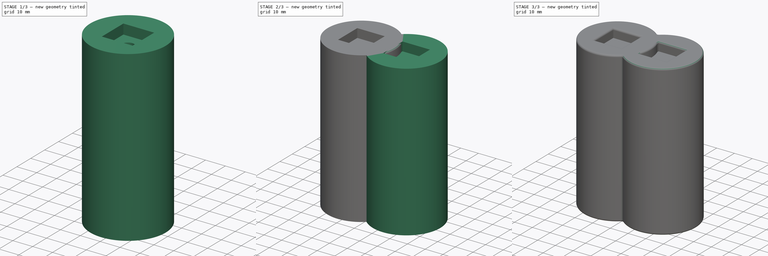
[diagram: build sequence overview — one tinted view per stage of 3, left to right]
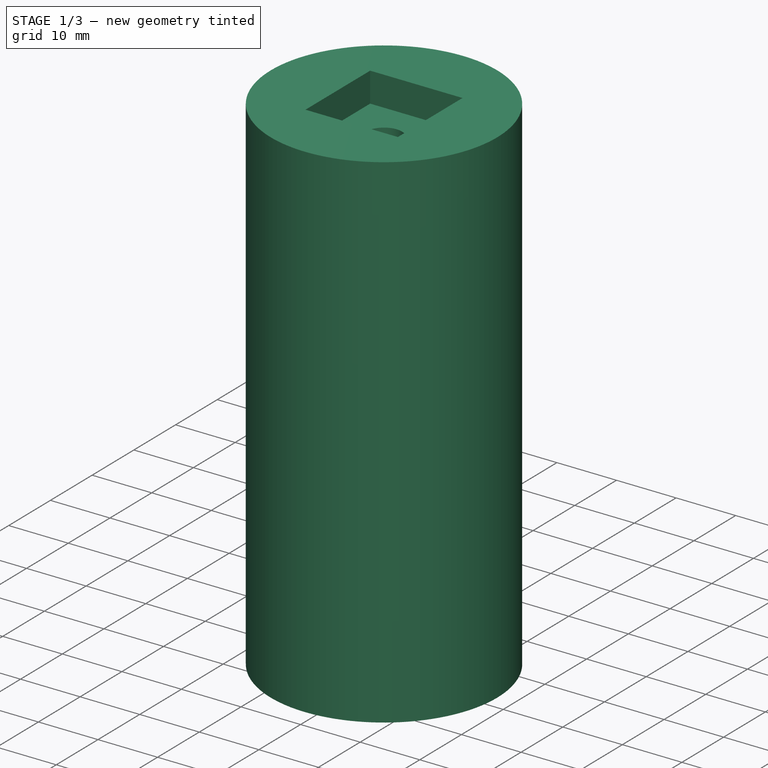
[diagram: stage 1 of 3 — iso view after this stage's code; geometry added in this stage tinted green]
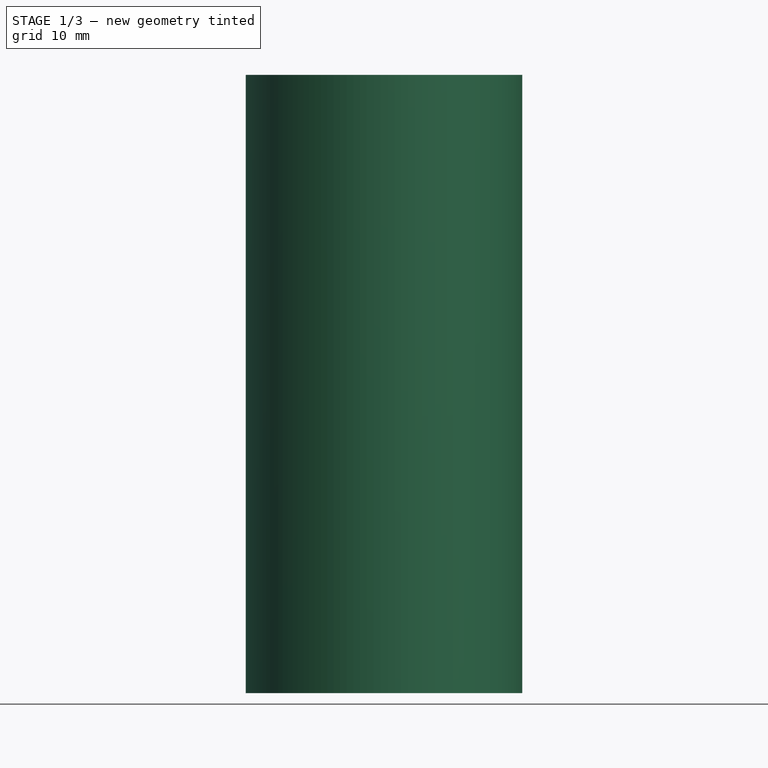
[diagram: stage 1 of 3 — front view after this stage's code; geometry added in this stage tinted green]
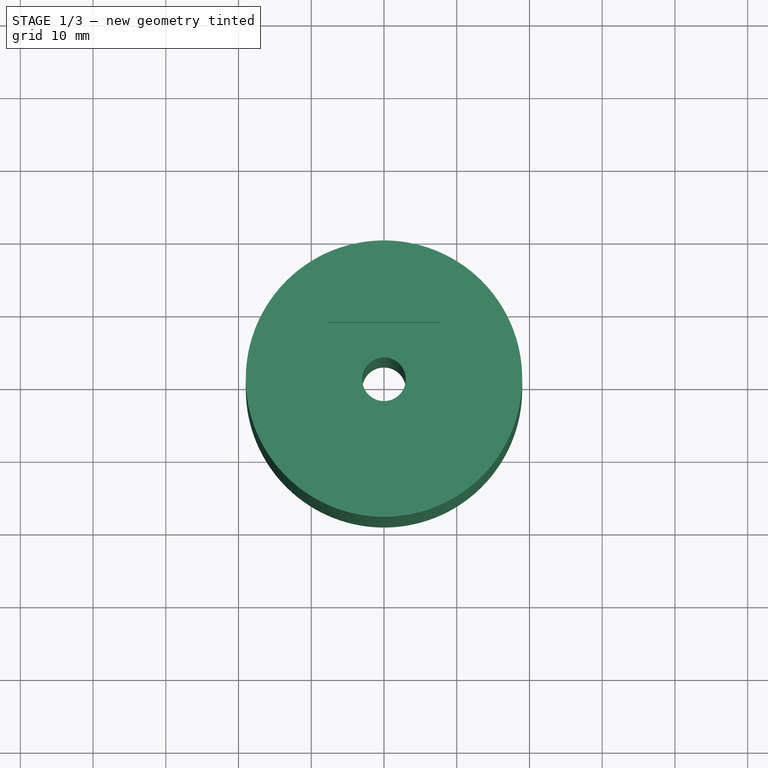
[diagram: stage 1 of 3 — top view after this stage's code; geometry added in this stage tinted green]
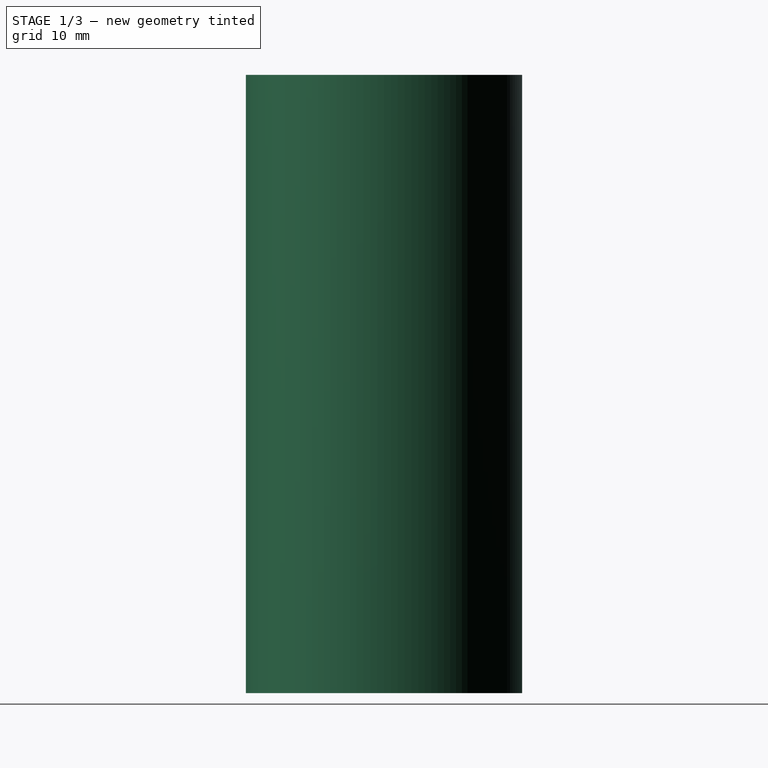
[diagram: stage 1 of 3 — right view after this stage's code; geometry added in this stage tinted green]
FCSTD DOCUMENT  (FreeCAD 0.20R29177 +426 (Git))
Label: bedRoomClothDrawStandLift
License: All rights reserved
LicenseURL: http://en.wikipedia.org/wiki/All_rights_reserved
objects: Sketcher::SketchObject×5, PartDesign::Pocket×3, PartDesign::Pad×2, PartDesign::Fillet×2, PartDesign::Body×2, Spreadsheet::Sheet×1
note: 21 computed .brp shape members not serialized (recipe doc carries the construction recipe); baked Part::Feature solids carry a one-line shape summary decoded from their .brp

FEATURE [Sketcher::SketchObject] Sketch003  label="Sketch003singleBase"
  FullyConstrained = true
  MapMode = 5
  Support = -> [XY_Plane001]
  expr: Constraints[1] = Spreadsheet.totalBaseR
  expr: Constraints[3] = Spreadsheet.originalBaseSupportScrewR
  sketch-geometry (2):
    g0: Circle CenterX=0 CenterY=0 CenterZ=0 NormalX=0 NormalY=0 NormalZ=1 AngleXU=0 Radius=19
    g1: Circle CenterX=0 CenterY=0 CenterZ=0 NormalX=0 NormalY=0 NormalZ=1 AngleXU=0 Radius=3
  constraints (4):
    c: Coincident(g0,g-1)
    c: Radius(g0) = 19
    c: Coincident(g1,g0)
    c: Radius(g1) = 3
FEATURE [PartDesign::Pad] Pad001
  Direction = (0,0,1)
  Length = 85
  Length2 = 10
  Profile = -> Sketch003
  ReferenceAxis = -> Sketch003 [N_Axis]
  Type = 0
  expr: Length = Spreadsheet.testLegHeight
FEATURE [Sketcher::SketchObject] Sketch004  label="Sketch004TopHolder"
  AttachmentOffset = pos=(0,0,85) rot=(0,0,1;0rad)
  FullyConstrained = true
  MapMode = 5
  Placement = pos=(0,0,85) rot=(0,0,1;0rad)
  Support = -> [XY_Plane001]
  expr: .AttachmentOffset.Base.z = Spreadsheet.testLegHeight
  expr: Constraints[10] = Spreadsheet.squreLegWidth / 2
  expr: Constraints[11] = Spreadsheet.squreLegWidth / 2
  expr: Constraints[8] = Spreadsheet.squreLegWidth
  expr: Constraints[9] = Spreadsheet.squreLegWidth
  sketch-geometry (4):
    g0: LineSegment StartX=-7.75 StartY=7.75 StartZ=0 EndX=7.75 EndY=7.75 EndZ=0
    g1: LineSegment StartX=7.75 StartY=7.75 StartZ=0 EndX=7.75 EndY=-7.75 EndZ=0
    g2: LineSegment StartX=7.75 StartY=-7.75 StartZ=0 EndX=-7.75 EndY=-7.75 EndZ=0
    g3: LineSegment StartX=-7.75 StartY=-7.75 StartZ=0 EndX=-7.75 EndY=7.75 EndZ=0
  constraints (12):
    c: Coincident(g0,g1)
    c: Coincident(g1,g2)
    c: Coincident(g2,g3)
    c: Coincident(g3,g0)
    c: Horizontal(g0)
    c: Horizontal(g2)
    c: Vertical(g1)
    c: Vertical(g3)
    c: DistanceX(g0,g0) = 15.5
    c: DistanceY(g1,g1) = 15.5
    c: DistanceY(g-1,g0) = 7.75
    c: DistanceX(g-1,g0) = 7.75
FEATURE [PartDesign::Pocket] Pocket002
  BaseFeature = -> Pad001
  Direction = (0,0,-1)
  Length = 5
  Length2 = 5
  Profile = -> Sketch004
  ReferenceAxis = -> Sketch004 [N_Axis]
  Type = 0
  expr: Length = Spreadsheet.legGuardHeight
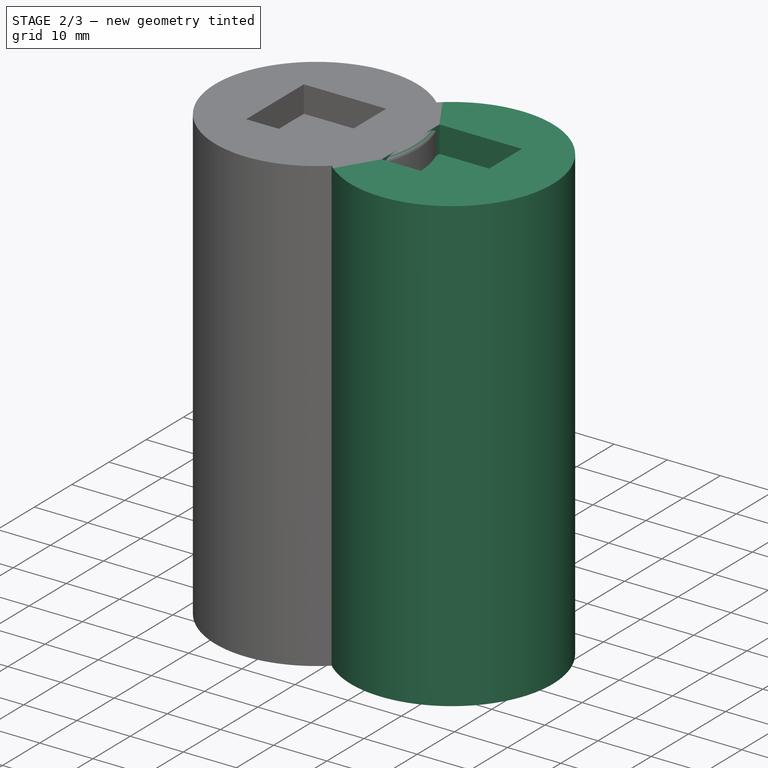
[diagram: stage 2 of 3 — iso view after this stage's code; geometry added in this stage tinted green]
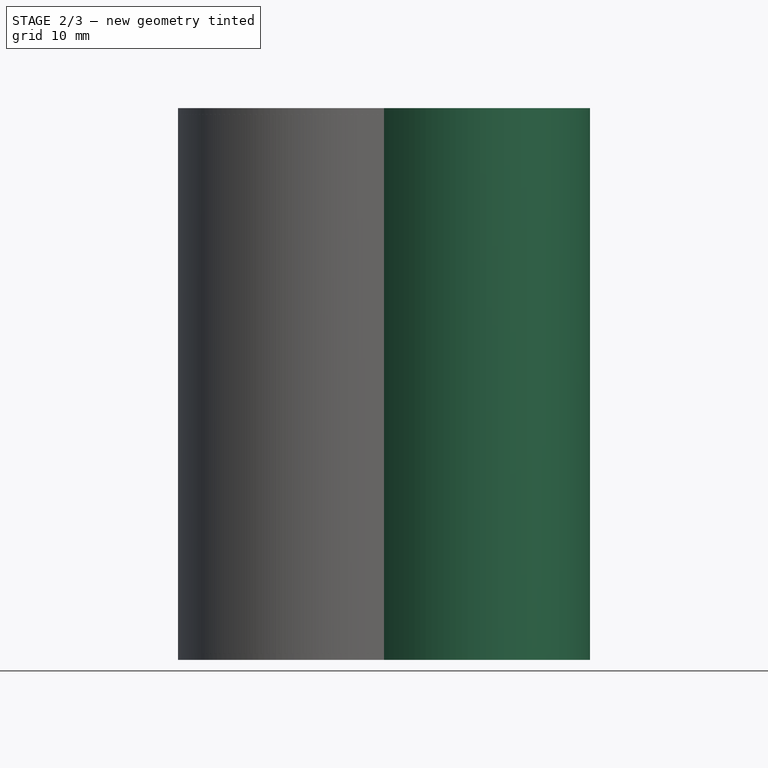
[diagram: stage 2 of 3 — front view after this stage's code; geometry added in this stage tinted green]
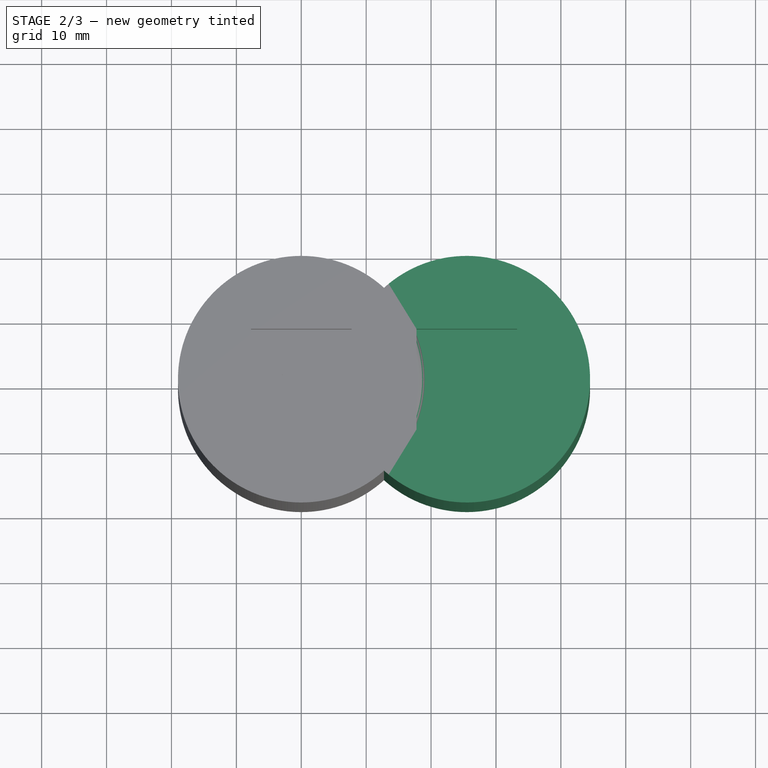
[diagram: stage 2 of 3 — top view after this stage's code; geometry added in this stage tinted green]
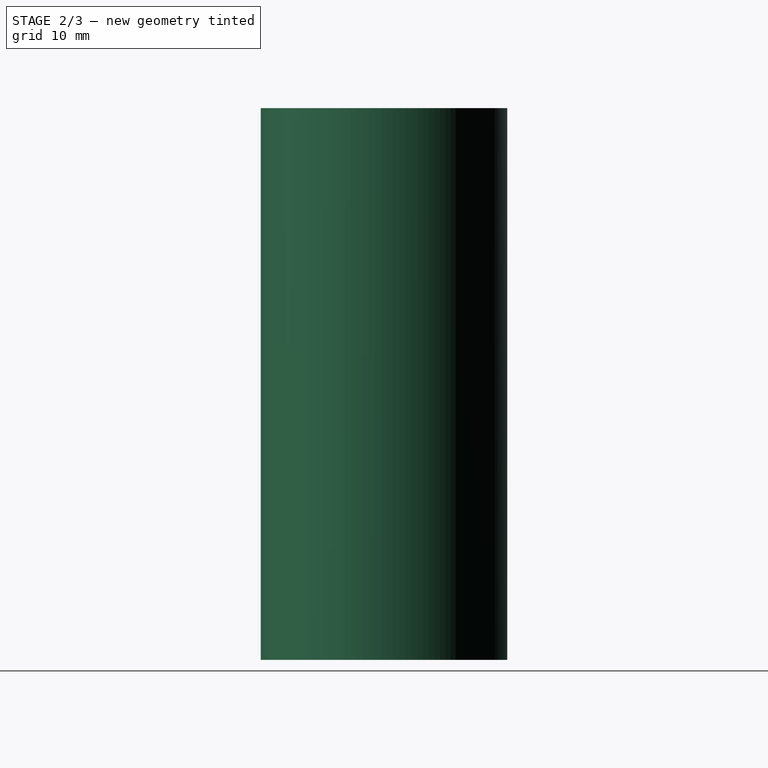
[diagram: stage 2 of 3 — right view after this stage's code; geometry added in this stage tinted green]
FEATURE [Spreadsheet::Sheet] Spreadsheet
  cells = A2=baseStandInnerR; B2(baseStandInnerR)==28 / 2; A3=between2LegsDist; B3(between2LegsDist)=10; A4=legThickness; B4(legThickness)=5; A5=legHeight; B5(legHeight)==128 - 48; A6=totalLegHeight; B6(totalLegHeight)==B5 + B7; A7=legGuardHeight; B7(legGuardHeight)=5; A8=totalBaseR; B8(totalBaseR)==B2 + B4; A10=squreLegWidth; B10(squreLegWidth)=15.5; A12=originalBaseSupportR; B12(originalBaseSupportR)=14; A13=originalBaseSupportScrewR; B13(originalBaseSupportScrewR)=3; A14=originalBaseSupportScrewLen; B14(originalBaseSupportScrewLen)=15; A15=testLegHeight; B15(testLegHeight)==B6; C15=change it to totalLegHeight for realprint
FEATURE [Sketcher::SketchObject] Sketch  label="SketchBase"
  FullyConstrained = true
  MapMode = 5
  Support = -> [XY_Plane]
  expr: Constraints[2] = Spreadsheet.totalBaseR
  expr: Constraints[3] = Spreadsheet.totalBaseR
  expr: Constraints[4] = Spreadsheet.between2LegsDist + Spreadsheet.squreLegWidth
  sketch-geometry (2):
    g0: ArcOfCircle CenterX=0 CenterY=0 CenterZ=0 NormalX=0 NormalY=0 NormalZ=1 AngleXU=0 Radius=19 StartAngle=0.835169 EndAngle=5.44802
    g1: ArcOfCircle CenterX=25.5 CenterY=0 CenterZ=0 NormalX=0 NormalY=0 NormalZ=1 AngleXU=0 Radius=19 StartAngle=3.97676 EndAngle=8.58961
  constraints (7):
    c: Coincident(g0,g-1)
    c: PointOnObject(g1,g-1)
    c: Radius(g0) = 19
    c: Radius(g1) = 19
    c: DistanceX(g0,g1) = 25.5
    c: Coincident(g0,g1)
    c: Coincident(g0,g1)
FEATURE [PartDesign::Pad] Pad
  Direction = (0,0,1)
  Length = 85
  Length2 = 10
  Profile = -> Sketch
  ReferenceAxis = -> Sketch [N_Axis]
  Type = 0
  expr: Length = Spreadsheet.testLegHeight
FEATURE [Sketcher::SketchObject] Sketch001  label="Sketch001TopPocket"
  AttachmentOffset = pos=(0,0,85) rot=(0,0,1;0rad)
  FullyConstrained = true
  MapMode = 5
  Placement = pos=(0,0,85) rot=(0,0,1;0rad)
  Support = -> [XY_Plane]
  expr: .AttachmentOffset.Base.z = Spreadsheet.testLegHeight
  expr: Constraints[19] = Spreadsheet.between2LegsDist
  expr: Constraints[20] = Spreadsheet.squreLegWidth
  sketch-geometry (8):
    g0: LineSegment StartX=-7.75 StartY=7.75 StartZ=0 EndX=7.75 EndY=7.75 EndZ=0
    g1: LineSegment StartX=7.75 StartY=7.75 StartZ=0 EndX=7.75 EndY=-7.75 EndZ=0
    g2: LineSegment StartX=7.75 StartY=-7.75 StartZ=0 EndX=-7.75 EndY=-7.75 EndZ=0
    g3: LineSegment StartX=-7.75 StartY=-7.75 StartZ=0 EndX=-7.75 EndY=7.75 EndZ=0
    g4: LineSegment StartX=17.75 StartY=7.75 StartZ=0 EndX=33.25 EndY=7.75 EndZ=0
    g5: LineSegment StartX=33.25 StartY=7.75 StartZ=0 EndX=33.25 EndY=-7.75 EndZ=0
    g6: LineSegment StartX=33.25 StartY=-7.75 StartZ=0 EndX=17.75 EndY=-7.75 EndZ=0
    g7: LineSegment StartX=17.75 StartY=-7.75 StartZ=0 EndX=17.75 EndY=7.75 EndZ=0
  constraints (21):
    c: Coincident(g0,g1)
    c: Coincident(g1,g2)
    c: Coincident(g2,g3)
    c: Coincident(g3,g0)
    c: Horizontal(g2)
    c: Vertical(g3)
    c: Coincident(g4,g5)
    c: Coincident(g5,g6)
    c: Coincident(g6,g7)
    c: Coincident(g7,g4)
    c: Horizontal(g4)
    c: Horizontal(g6)
    c: Vertical(g7)
    c: Equal(g0,g1)
    c: Equal(g4,g5)
    c: Equal(g4,g0)
    c: Symmetric(g0,g0,g-2)
    c: Symmetric(g0,g1,g-1)
    c: Symmetric(g4,g5,g-1)
    c: DistanceX(g0,g4) = 10
    c: DistanceX(g0,g0) = 15.5
FEATURE [PartDesign::Pocket] Pocket
  BaseFeature = -> Pad
  Direction = (0,0,-1)
  Length = 5
  Length2 = 5
  Profile = -> Sketch001
  ReferenceAxis = -> Sketch001 [N_Axis]
  Type = 0
  expr: Length = Spreadsheet.legGuardHeight
FEATURE [PartDesign::Body] Body
  Group = -> [Sketch,Pad,Sketch001,Pocket,Sketch002,Pocket001,Fillet]
  Origin = -> Origin
  Tip = -> Fillet
FEATURE [PartDesign::Fillet] Fillet001
  Base = -> Pocket002 [Face3,Face2]
  BaseFeature = -> Pocket002
  Radius = 1
  SupportTransform = false
  UseAllEdges = false
FEATURE [PartDesign::Body] Body001  label="Body001Single"
  Group = -> [Sketch003,Pad001,Sketch004,Pocket002,Fillet001]
  Origin = -> Origin001
  Tip = -> Fillet001
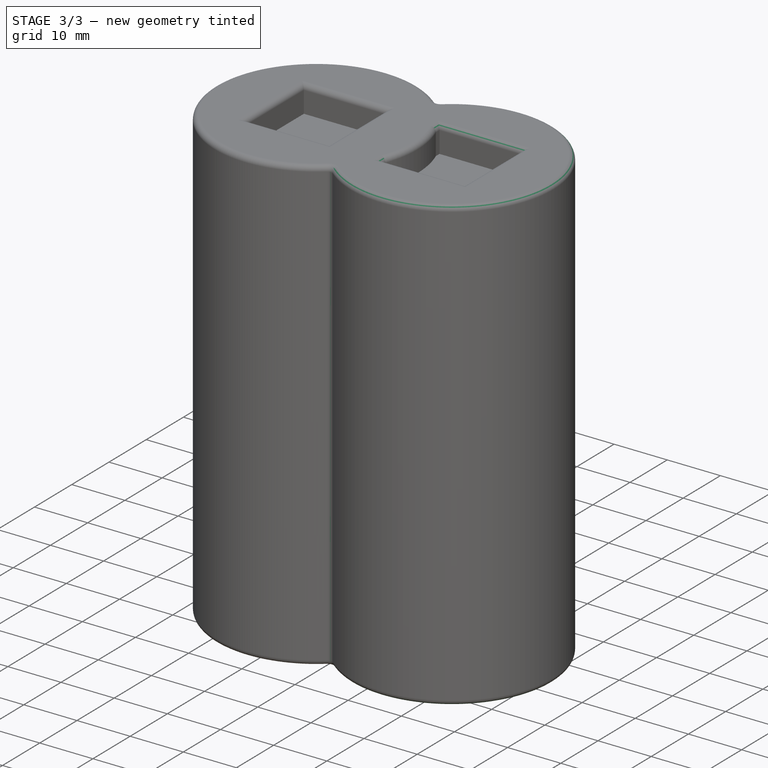
[diagram: stage 3 of 3 — iso view after this stage's code; geometry added in this stage tinted green]
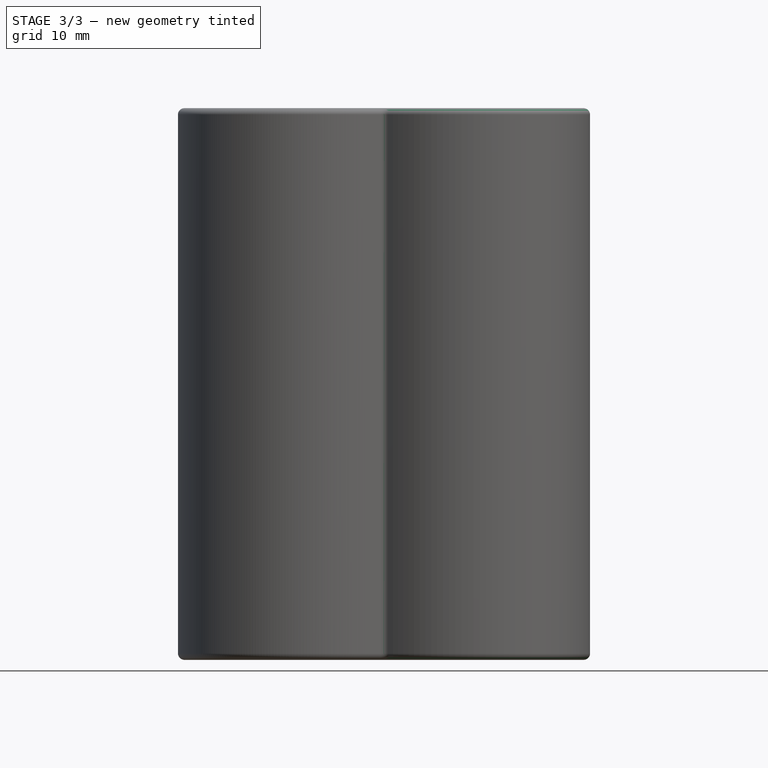
[diagram: stage 3 of 3 — front view after this stage's code; geometry added in this stage tinted green]
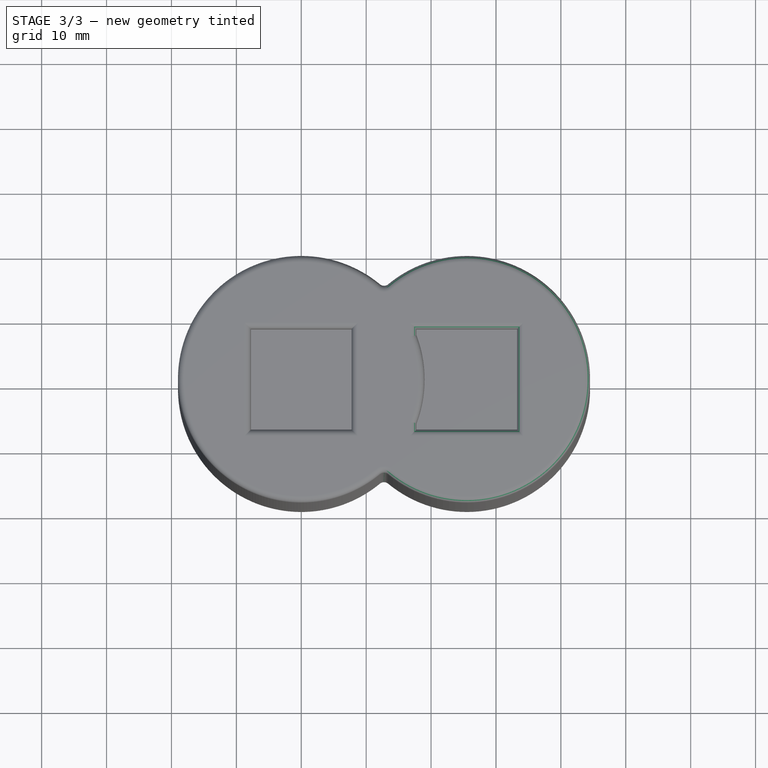
[diagram: stage 3 of 3 — top view after this stage's code; geometry added in this stage tinted green]
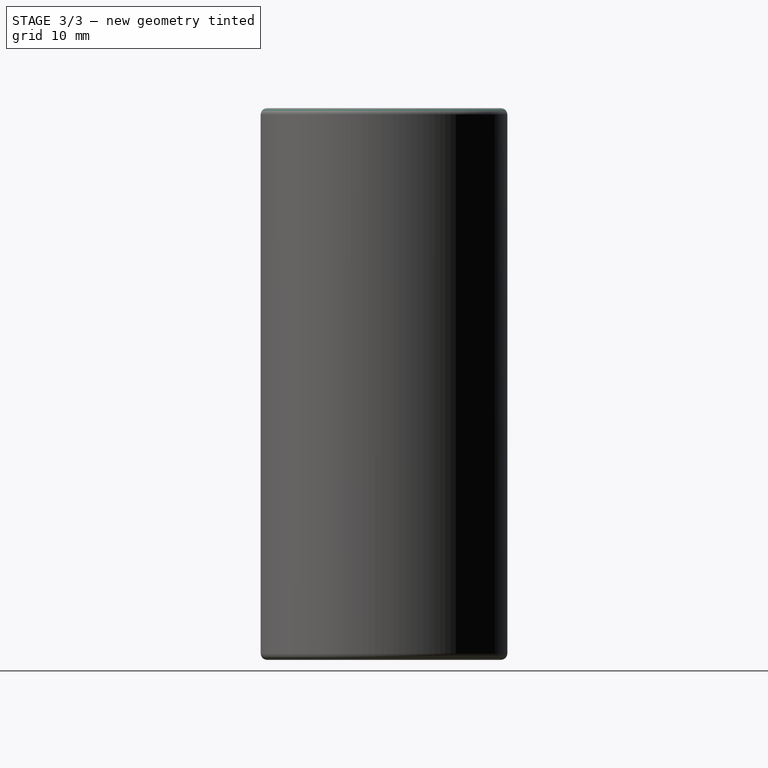
[diagram: stage 3 of 3 — right view after this stage's code; geometry added in this stage tinted green]
FEATURE [Sketcher::SketchObject] Sketch002
  FullyConstrained = true
  MapMode = 5
  Support = -> [XY_Plane]
  expr: Constraints[2] = Spreadsheet.originalBaseSupportR
  expr: Constraints[3] = Spreadsheet.originalBaseSupportR
  expr: Constraints[4] = Spreadsheet.originalBaseSupportR * 2
  expr: Constraints[5] = Spreadsheet.originalBaseSupportR - (Spreadsheet.between2LegsDist + Spreadsheet.squreLegWidth) / 2
  expr: Constraints[8] = Spreadsheet.originalBaseSupportScrewR
  expr: Constraints[9] = Spreadsheet.originalBaseSupportScrewR
  sketch-geometry (4):
    g0: Circle CenterX=-1.25 CenterY=0 CenterZ=0 NormalX=0 NormalY=0 NormalZ=1 AngleXU=0 Radius=14
    g1: Circle CenterX=26.75 CenterY=0 CenterZ=0 NormalX=0 NormalY=0 NormalZ=1 AngleXU=0 Radius=14
    g2: Circle CenterX=-1.25 CenterY=0 CenterZ=0 NormalX=0 NormalY=0 NormalZ=1 AngleXU=0 Radius=3
    g3: Circle CenterX=26.75 CenterY=0 CenterZ=0 NormalX=0 NormalY=0 NormalZ=1 AngleXU=0 Radius=3
  constraints (10):
    c: PointOnObject(g0,g-1)
    c: PointOnObject(g1,g-1)
    c: Radius(g0) = 14
    c: Radius(g1) = 14
    c: DistanceX(g0,g1) = 28
    c: DistanceX(g0,g-1) = 1.25
    c: Coincident(g2,g0)
    c: Coincident(g3,g1)
    c: Radius(g2) = 3
    c: Radius(g3) = 3
FEATURE [PartDesign::Pocket] Pocket001
  BaseFeature = -> Pocket
  Direction = (0,0,-1)
  Length = 15
  Length2 = 5
  Profile = -> Sketch002
  ReferenceAxis = -> Sketch002 [N_Axis]
  Reversed = true
  Type = 0
  expr: Length = Spreadsheet.originalBaseSupportScrewLen
FEATURE [PartDesign::Fillet] Fillet
  Base = -> Pocket001 [Edge4,Edge6,Edge3,Edge5,Edge7,Face4,Face3,Edge2,Edge1]
  BaseFeature = -> Pocket001
  Radius = 1
  SupportTransform = false
  UseAllEdges = false
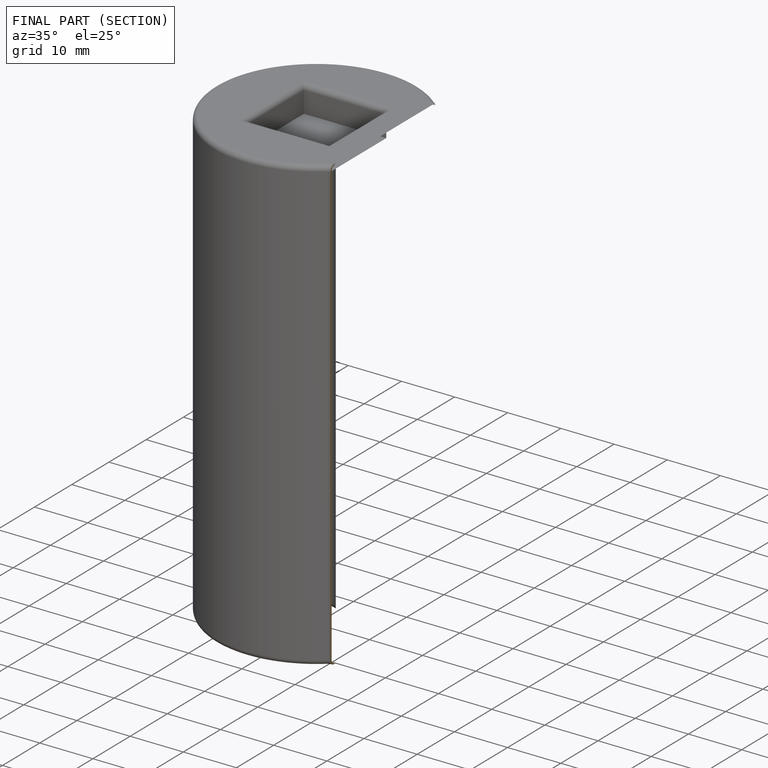
[diagram: finished part — half-section view (interior)]
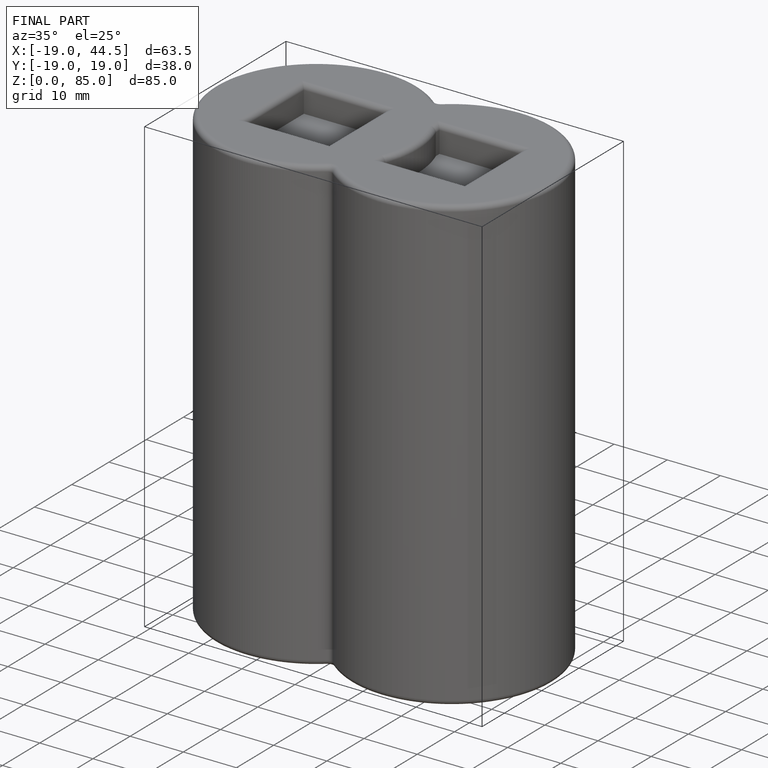
[diagram: finished part — iso view with bounding-box wireframe]
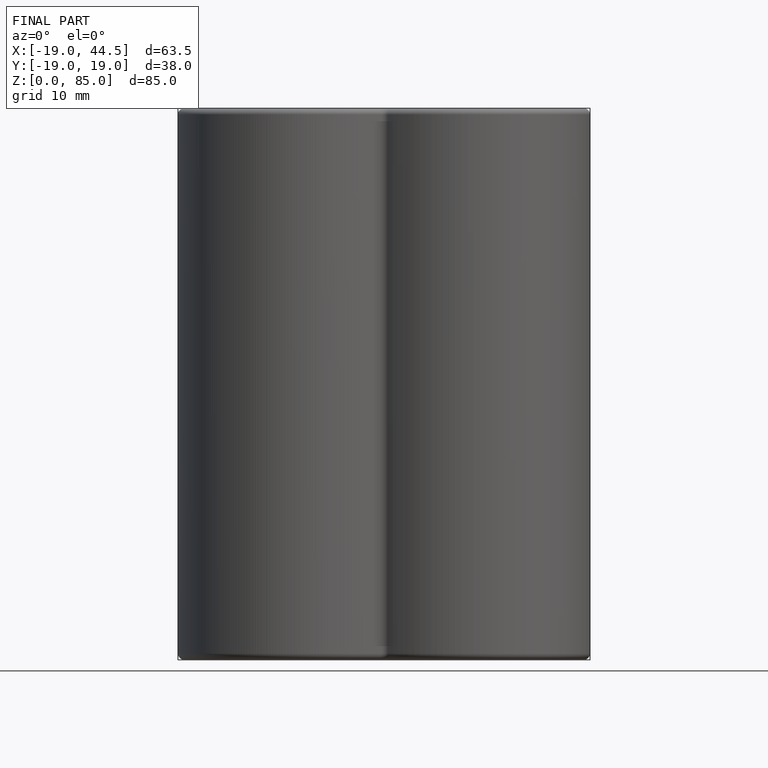
[diagram: finished part — front view with bounding-box wireframe]
